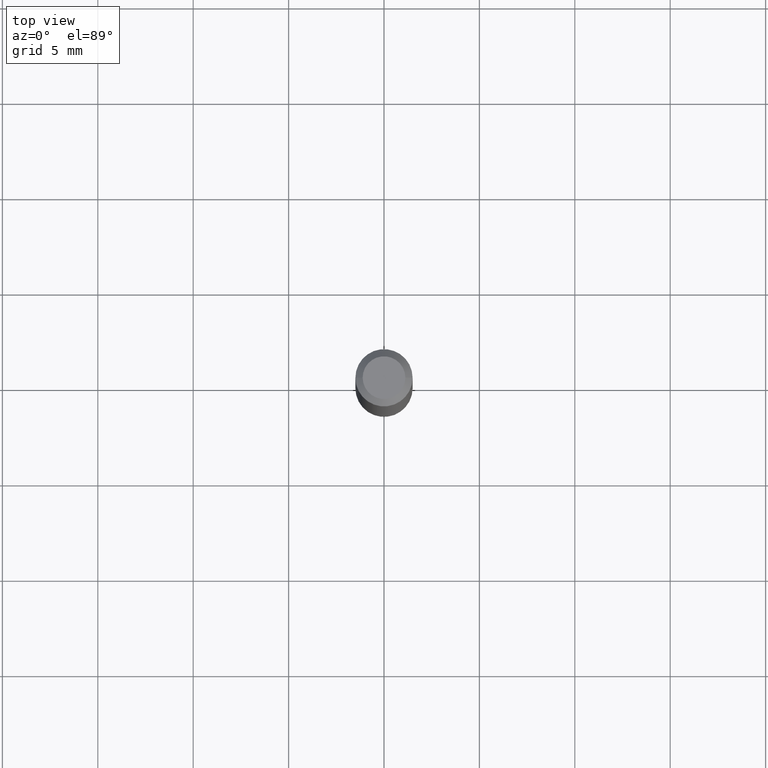
[diagram: clean part render]
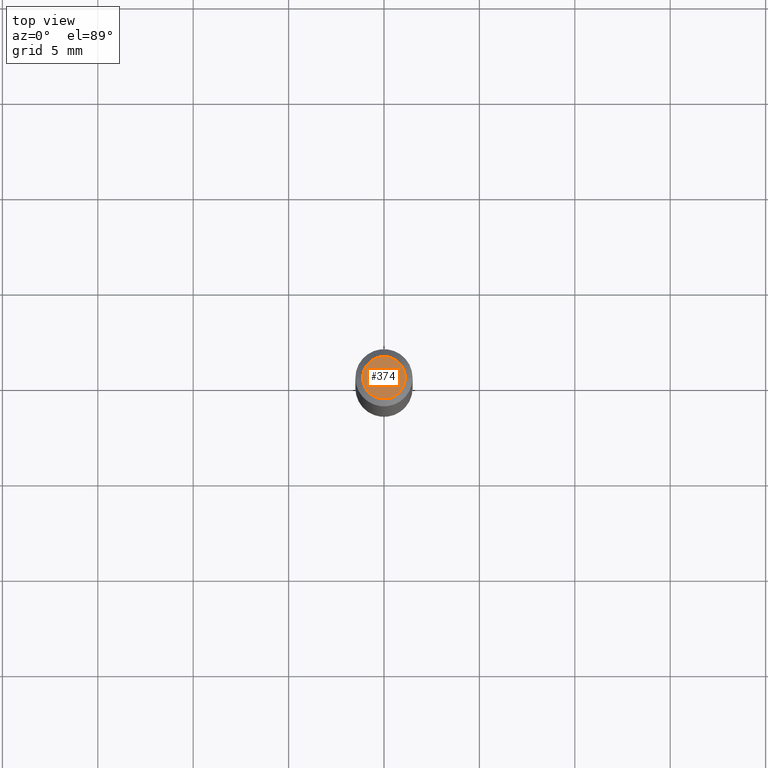
[diagram: same view with one face highlighted and labeled with its STEP entity id]
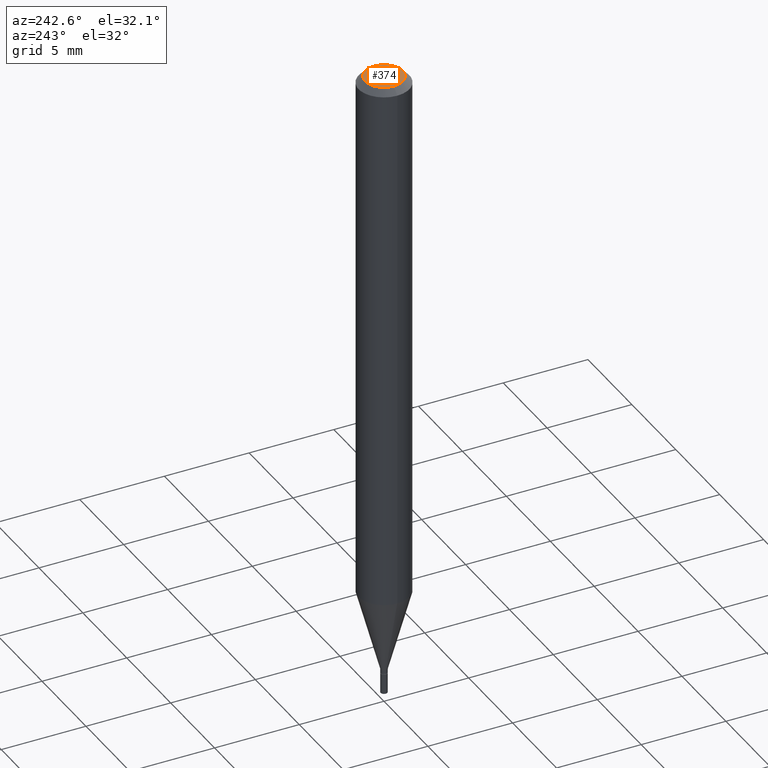
[diagram: same view with one face highlighted and labeled with its STEP entity id]
A machine part, top view. The second image highlights one B-rep face of the part: STEP entity #374.
A second angle (auxiliary view) of the same face is appended — the face is thin or edge-on in the first view.
In plain terms, the highlighted planar face has unit normal (0, -0, -1).
Its self-contained STEP definition (entity closure, byte-faithful):
#4 = EDGE_CURVE ( 'NONE', #354, #336, #350, .T. ) ;
#22 = CARTESIAN_POINT ( 'NONE',  ( 0.04404999999999999888, -3.798447818264462051E-16, -1.162416517208521811E-16 ) ) ;
#26 = CARTESIAN_POINT ( 'NONE',  ( 3.075995059520799729E-16, 0.04404999999999999888, -2.119205788364678519E-16 ) ) ;
#30 = DIRECTION ( 'NONE',  ( 2.438088387897960049E-29, -3.491481338843145188E-15, -1.000000000000000000 ) ) ;
#107 = DIRECTION ( 'NONE',  ( 1.000000000000000000, -6.982962677686265922E-15, 4.888540261209747396E-29 ) ) ;
#128 = ORIENTED_EDGE ( 'NONE', *, *, #150, .T. ) ;
#135 = DIRECTION ( 'NONE',  ( 1.000000000000000000, -6.982962677686265922E-15, 4.888540261209747396E-29 ) ) ;
#143 = AXIS2_PLACEMENT_3D ( 'NONE', #270, #200, #135 ) ;
#148 = CARTESIAN_POINT ( 'NONE',  ( 2.842653332627866660E-45, -4.058555577796679728E-31, -1.162416517208545723E-16 ) ) ;
#150 = EDGE_CURVE ( 'NONE', #336, #354, #278, .T. ) ;
#170 = AXIS2_PLACEMENT_3D ( 'NONE', #148, #176, #107 ) ;
#176 = DIRECTION ( 'NONE',  ( -2.445468806185136597E-29, 3.491481338843145583E-15, 1.000000000000000000 ) ) ;
#179 = EDGE_LOOP ( 'NONE', ( #266, #128 ) ) ;
#200 = DIRECTION ( 'NONE',  ( -2.445468806185136597E-29, 3.491481338843145583E-15, 1.000000000000000000 ) ) ;
#266 = ORIENTED_EDGE ( 'NONE', *, *, #4, .T. ) ;
#270 = CARTESIAN_POINT ( 'NONE',  ( 2.842653332627866660E-45, -4.058555577796679728E-31, -1.162416517208545723E-16 ) ) ;
#278 = CIRCLE ( 'NONE', #170, 0.04404999999999999888 ) ;
#323 = AXIS2_PLACEMENT_3D ( 'NONE', #26, #30, #427 ) ;
#336 = VERTEX_POINT ( 'NONE', #22 ) ;
#350 = CIRCLE ( 'NONE', #143, 0.04404999999999999888 ) ;
#354 = VERTEX_POINT ( 'NONE', #451 ) ;
#356 = FACE_OUTER_BOUND ( 'NONE', #179, .T. ) ;
#374 = ADVANCED_FACE ( 'NONE', ( #356 ), #393, .F. ) ;
#393 = PLANE ( 'NONE',  #323 ) ;
#427 = DIRECTION ( 'NONE',  ( -1.000000000000000000, 6.982962677686265922E-15, -4.876176775795935793E-29 ) ) ;
#451 = CARTESIAN_POINT ( 'NONE',  ( -0.04404999999999999888, 3.337856159934032167E-16, -1.162416517208568157E-16 ) ) ;